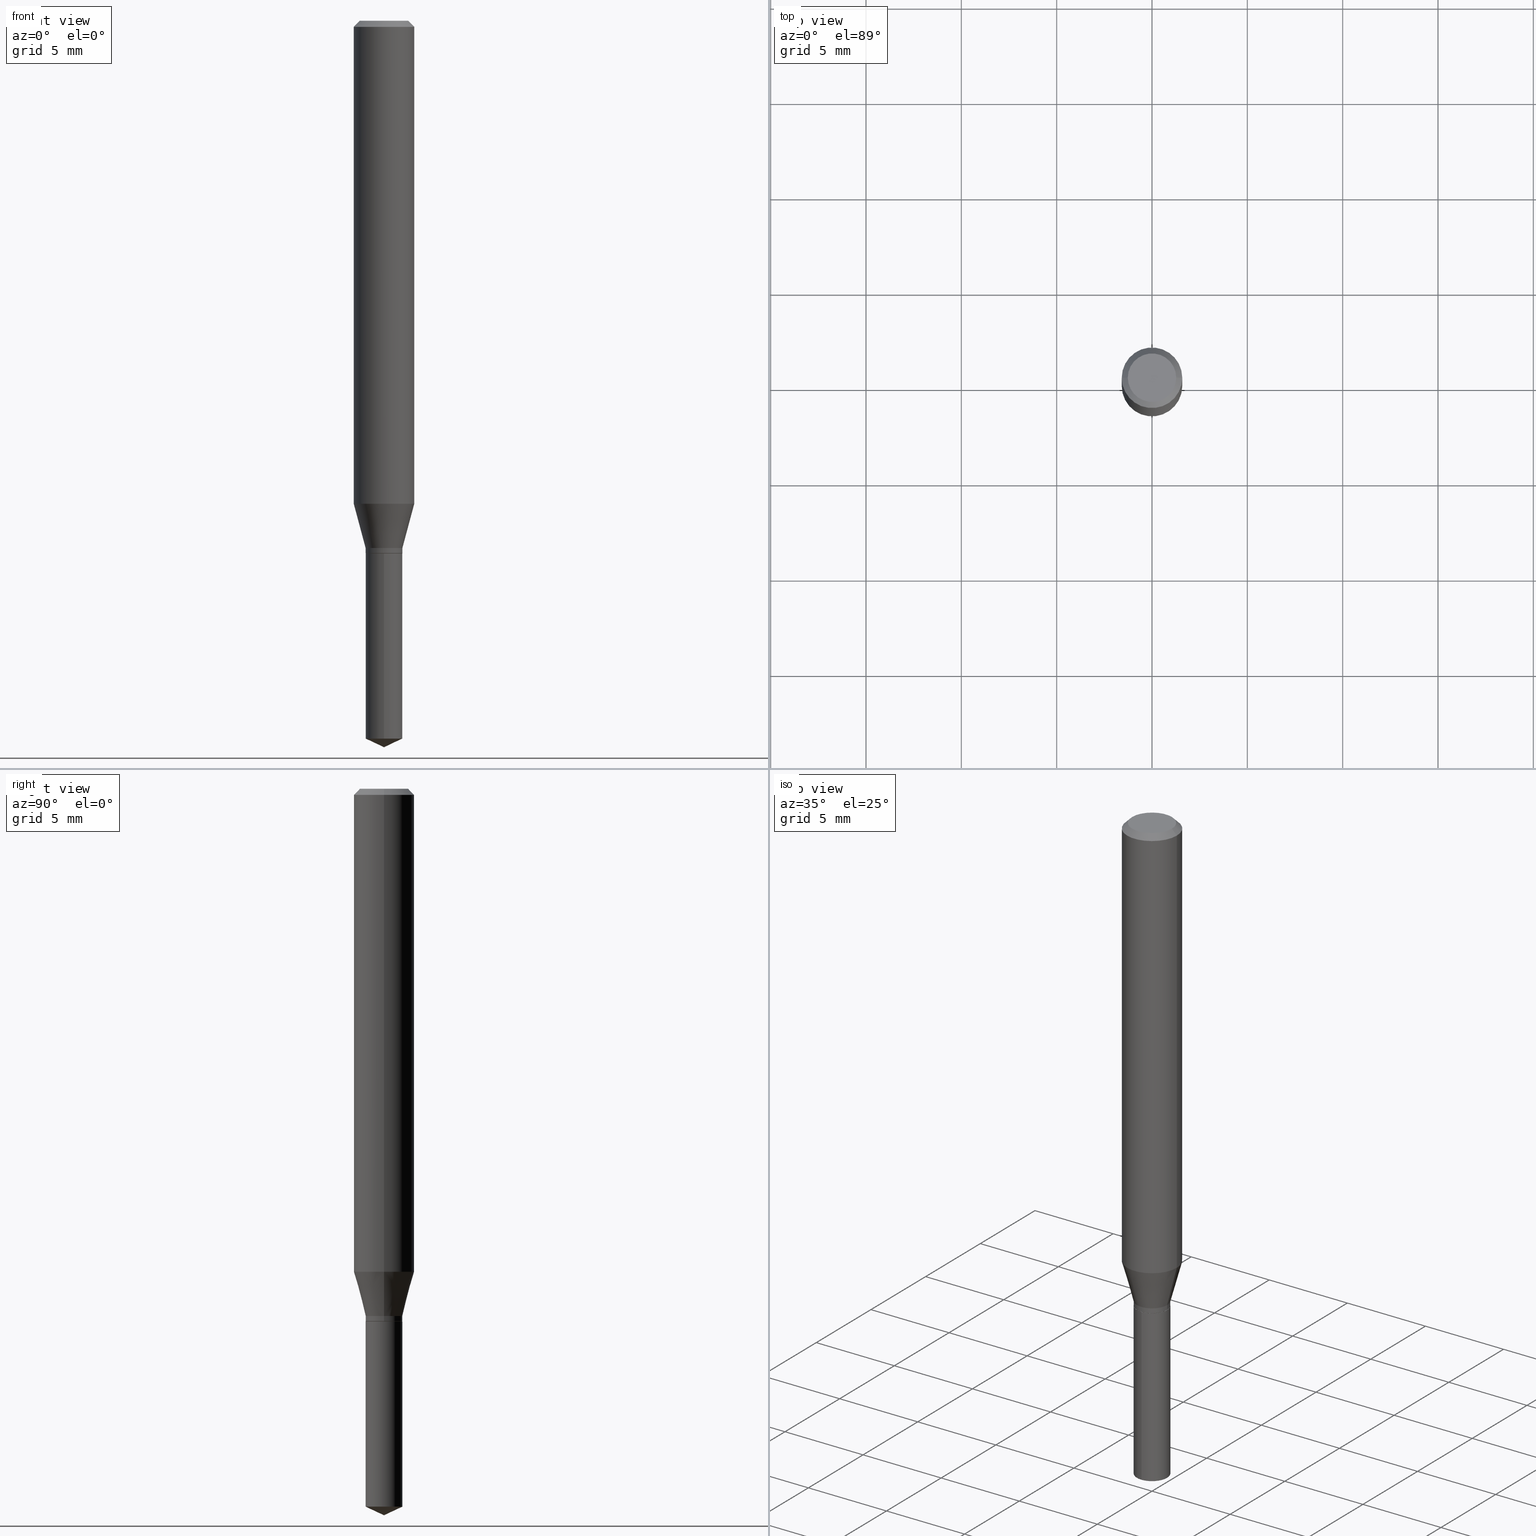
[diagram: canonical four-view strip — front | top / right | iso, engineering-drawing reading convention]
A machine part, canonical four-view strip (front | top / right | iso — engineering-drawing reading convention). The complete STEP part file that produces these views, byte-faithful:
ISO-10303-21;
HEADER;
FILE_DESCRIPTION (( 'STEP AP203' ),
    '1' );
FILE_NAME ('07353.STEP',
    '2024-04-23T20:40:26',
    ( '' ),
    ( '' ),
    'SwSTEP 2.0',
    'SolidWorks 2023',
    '' );
FILE_SCHEMA (( 'CONFIG_CONTROL_DESIGN' ));
ENDSEC;

DATA;
#1 = ORIENTED_EDGE ( 'NONE', *, *, #56, .F. ) ;
#2 = VECTOR ( 'NONE', #272, 39.37007874015748143 ) ;
#3 = ORIENTED_EDGE ( 'NONE', *, *, #122, .F. ) ;
#4 = LINE ( 'NONE', #395, #373 ) ;
#5 = AXIS2_PLACEMENT_3D ( 'NONE', #296, #102, #24 ) ;
#6 = ORIENTED_EDGE ( 'NONE', *, *, #382, .T. ) ;
#7 = DIRECTION ( 'NONE',  ( -2.445399690415121530E-29, 3.491580316559632610E-15, 1.000000000000000000 ) ) ;
#8 = CONICAL_SURFACE ( 'NONE', #259, 0.03800000000000000600, 0.2617993877991500740 ) ;
#9 = ADVANCED_FACE ( 'NONE', ( #107 ), #328, .T. ) ;
#10 = EDGE_LOOP ( 'NONE', ( #368, #85 ) ) ;
#11 = CC_DESIGN_PERSON_AND_ORGANIZATION_ASSIGNMENT ( #100, #29, ( #45 ) ) ;
#12 = DIRECTION ( 'NONE',  ( 1.000000000000000000, -6.982962677686265922E-15, 4.876176775795935793E-29 ) ) ;
#13 =( NAMED_UNIT ( * ) PLANE_ANGLE_UNIT ( ) SI_UNIT ( $, .RADIAN. ) );
#14 = CARTESIAN_POINT ( 'NONE',  ( 3.668099535622682715E-29, -5.237370474839449507E-15, -1.500000000000000222 ) ) ;
#15 = DIRECTION ( 'NONE',  ( 1.000000000000000000, -6.982962677686267499E-15, 0.000000000000000000 ) ) ;
#16 = ORIENTED_EDGE ( 'NONE', *, *, #316, .T. ) ;
#17 = CIRCLE ( 'NONE', #307, 0.04999999999999999584 ) ;
#18 = AXIS2_PLACEMENT_3D ( 'NONE', #229, #379, #192 ) ;
#19 = EDGE_LOOP ( 'NONE', ( #146, #338 ) ) ;
#20 = SECURITY_CLASSIFICATION ( '', '', #71 ) ;
#21 = LINE ( 'NONE', #331, #336 ) ;
#22 = ORIENTED_EDGE ( 'NONE', *, *, #390, .F. ) ;
#23 = ADVANCED_FACE ( 'NONE', ( #248 ), #28, .T. ) ;
#24 = DIRECTION ( 'NONE',  ( 1.000000000000000000, -6.982962677686267499E-15, 4.876176775795936353E-29 ) ) ;
#25 = EDGE_LOOP ( 'NONE', ( #426, #262, #145, #204 ) ) ;
#26 = DATE_AND_TIME ( #370, #325 ) ;
#27 = CARTESIAN_POINT ( 'NONE',  ( 3.893286209682126177E-47, -5.558580879666067980E-33, -1.592040838891559689E-18 ) ) ;
#28 = CYLINDRICAL_SURFACE ( 'NONE', #169, 0.03800000000000000600 ) ;
#29 = PERSON_AND_ORGANIZATION_ROLE ( 'creator' ) ;
#30 = DIRECTION ( 'NONE',  ( -2.445399690415121530E-29, 3.491580316559632610E-15, 1.000000000000000000 ) ) ;
#31 = CIRCLE ( 'NONE', #285, 0.03800000000000000600 ) ;
#32 = APPROVAL_PERSON_ORGANIZATION ( #403, #467, #263 ) ;
#33 = CARTESIAN_POINT ( 'NONE',  ( -0.03749999999999999861, -3.574175946817422690E-15, -1.100000000000000089 ) ) ;
#34 = CARTESIAN_POINT ( 'NONE',  ( -0.06250000000000012490, -3.037492924733674885E-15, -0.9971647552145623816 ) ) ;
#35 = AXIS2_PLACEMENT_3D ( 'NONE', #222, #193, #189 ) ;
#36 = AXIS2_PLACEMENT_3D ( 'NONE', #304, #452, #485 ) ;
#37 = LOCAL_TIME ( 16, 40, 26.00000000000000000, #225 ) ;
#38 = DIRECTION ( 'NONE',  ( 0.2588190451025213501, 1.565188264969621968E-15, 0.9659258262890682012 ) ) ;
#39 = DIRECTION ( 'NONE',  ( 1.000000000000000000, -6.982962677686264344E-15, 0.000000000000000000 ) ) ;
#40 = ORIENTED_EDGE ( 'NONE', *, *, #281, .F. ) ;
#41 = ADVANCED_FACE ( 'NONE', ( #483 ), #154, .T. ) ;
#42 = CIRCLE ( 'NONE', #417, 0.04999999999999999584 ) ;
#43 = ORIENTED_EDGE ( 'NONE', *, *, #231, .T. ) ;
#44 = LOCAL_TIME ( 16, 40, 26.00000000000000000, #252 ) ;
#45 = PRODUCT_DEFINITION ( 'UNKNOWN', '', #378, #275 ) ;
#46 = ORIENTED_EDGE ( 'NONE', *, *, #122, .T. ) ;
#47 = DIRECTION ( 'NONE',  ( -2.445468806185136877E-29, 3.491481338843145188E-15, 1.000000000000000000 ) ) ;
#48 = LINE ( 'NONE', #201, #160 ) ;
#49 = ORIENTED_EDGE ( 'NONE', *, *, #327, .T. ) ;
#50 = DIRECTION ( 'NONE',  ( -2.445468806185136597E-29, 3.491481338843145583E-15, 1.000000000000000000 ) ) ;
#51 = DIRECTION ( 'NONE',  ( 2.445468806185136597E-29, -3.491481338843145583E-15, -1.000000000000000000 ) ) ;
#52 = VECTOR ( 'NONE', #155, 39.37007874015748143 ) ;
#53 = ORIENTED_EDGE ( 'NONE', *, *, #453, .F. ) ;
#54 = DIRECTION ( 'NONE',  ( 1.000000000000000000, -6.982962677686267499E-15, 0.000000000000000000 ) ) ;
#55 = CIRCLE ( 'NONE', #18, 0.03800000000000000600 ) ;
#56 = EDGE_CURVE ( 'NONE', #463, #352, #462, .T. ) ;
#57 = DIRECTION ( 'NONE',  ( -2.445468806185136877E-29, 3.491481338843145188E-15, 1.000000000000000000 ) ) ;
#58 = DIRECTION ( 'NONE',  ( -2.445399690415121810E-29, 3.491580316559632610E-15, 1.000000000000000000 ) ) ;
#59 = CARTESIAN_POINT ( 'NONE',  ( 0.000000000000000000, 0.000000000000000000, 0.000000000000000000 ) ) ;
#60 = VERTEX_POINT ( 'NONE', #486 ) ;
#61 = EDGE_CURVE ( 'NONE', #199, #391, #415, .T. ) ;
#62 = VERTEX_POINT ( 'NONE', #157 ) ;
#63 = COORDINATED_UNIVERSAL_TIME_OFFSET ( 5, 0, .BEHIND. ) ;
#64 = VECTOR ( 'NONE', #47, 39.37007874015748143 ) ;
#65 = APPROVAL ( #219, 'UNSPECIFIED' ) ;
#66 = EDGE_LOOP ( 'NONE', ( #394, #99, #234, #149 ) ) ;
#67 = COORDINATED_UNIVERSAL_TIME_OFFSET ( 5, 0, .BEHIND. ) ;
#68 = FACE_OUTER_BOUND ( 'NONE', #25, .T. ) ;
#69 = EDGE_LOOP ( 'NONE', ( #140, #470, #207, #22 ) ) ;
#70 = CARTESIAN_POINT ( 'NONE',  ( -0.04999999999999999584, 3.709698922520826725E-16, -1.592040838894077649E-18 ) ) ;
#71 = SECURITY_CLASSIFICATION_LEVEL ( 'unclassified' ) ;
#72 = FACE_OUTER_BOUND ( 'NONE', #401, .T. ) ;
#73 = ADVANCED_FACE ( 'NONE', ( #423 ), #226, .T. ) ;
#74 = CARTESIAN_POINT ( 'NONE',  ( -2.653525817520512368E-16, -0.03800000000000384320, -1.099999999999999867 ) ) ;
#75 = CARTESIAN_POINT ( 'NONE',  ( 2.438535303504449813E-29, -3.481582134583737895E-15, -0.9971647552145623816 ) ) ;
#76 = FACE_OUTER_BOUND ( 'NONE', #103, .T. ) ;
#77 = ADVANCED_FACE ( 'NONE', ( #419 ), #86, .T. ) ;
#78 = CARTESIAN_POINT ( 'NONE',  ( 2.690015686803650369E-29, -3.840629472727460101E-15, -1.100000000000000089 ) ) ;
#79 = AXIS2_PLACEMENT_3D ( 'NONE', #344, #306, #115 ) ;
#80 = CARTESIAN_POINT ( 'NONE',  ( -9.260740279983036507E-28, 1.322265303911854087E-13, 37.87007874015748143 ) ) ;
#81 = DIRECTION ( 'NONE',  ( -2.445468806185136877E-29, 3.491481338843145188E-15, 1.000000000000000000 ) ) ;
#82 = CARTESIAN_POINT ( 'NONE',  ( 2.690015686803650369E-29, -3.840629472727460101E-15, -1.100000000000000089 ) ) ;
#83 = ADVANCED_FACE ( 'NONE', ( #76 ), #413, .F. ) ;
#84 = DIRECTION ( 'NONE',  ( -2.445468806185136597E-29, 3.491481338843145583E-15, 1.000000000000000000 ) ) ;
#85 = ORIENTED_EDGE ( 'NONE', *, *, #237, .F. ) ;
#86 = CONICAL_SURFACE ( 'NONE', #79, 0.03749999999999999861, 0.7853981633974141952 ) ;
#87 = AXIS2_PLACEMENT_3D ( 'NONE', #205, #179, #125 ) ;
#88 = CARTESIAN_POINT ( 'NONE',  ( 0.03800000000000000600, -4.104236313810116607E-15, -1.099499999999999922 ) ) ;
#89 = ORIENTED_EDGE ( 'NONE', *, *, #422, .F. ) ;
#90 = CARTESIAN_POINT ( 'NONE',  ( 3.624843836059862325E-29, -5.175391875005663556E-15, -1.482280308990110207 ) ) ;
#91 = EDGE_CURVE ( 'NONE', #165, #218, #118, .T. ) ;
#92 = CARTESIAN_POINT ( 'NONE',  ( 0.03800000000000000600, -4.066179167216727040E-15, -1.088600000000000012 ) ) ;
#93 = CARTESIAN_POINT ( 'NONE',  ( 0.000000000000000000, 0.000000000000000000, 0.000000000000000000 ) ) ;
#94 = VERTEX_POINT ( 'NONE', #273 ) ;
#95 =( LENGTH_UNIT ( ) NAMED_UNIT ( * ) SI_UNIT ( $, .METRE. ) );
#96 = CONICAL_SURFACE ( 'NONE', #35, 0.06250000000000000000, 0.7853981633974452814 ) ;
#97 = ORIENTED_EDGE ( 'NONE', *, *, #255, .T. ) ;
#98 = PRODUCT_DEFINITION_SHAPE ( 'NONE', 'NONE',  #45 ) ;
#99 = ORIENTED_EDGE ( 'NONE', *, *, #164, .T. ) ;
#100 = PERSON_AND_ORGANIZATION ( #134, #117 ) ;
#101 = LINE ( 'NONE', #113, #52 ) ;
#102 = DIRECTION ( 'NONE',  ( -2.445468806185136597E-29, 3.491481338843145583E-15, 1.000000000000000000 ) ) ;
#103 = EDGE_LOOP ( 'NONE', ( #16, #440 ) ) ;
#104 = CALENDAR_DATE ( 2024, 23, 4 ) ;
#105 = CIRCLE ( 'NONE', #446, 0.06250000000000012490 ) ;
#106 = CC_DESIGN_APPROVAL ( #65, ( #20 ) ) ;
#107 = FACE_OUTER_BOUND ( 'NONE', #69, .T. ) ;
#108 = UNCERTAINTY_MEASURE_WITH_UNIT (LENGTH_MEASURE( 1.000000000000000082E-05 ), #324, 'distance_accuracy_value', 'NONE');
#109 = APPROVAL_PERSON_ORGANIZATION ( #418, #65, #150 ) ;
#110 = DIRECTION ( 'NONE',  ( -0.7071067811865232589, 7.493145998870265808E-15, 0.7071067811865715536 ) ) ;
#111 = VERTEX_POINT ( 'NONE', #34 ) ;
#112 = CALENDAR_DATE ( 2024, 23, 4 ) ;
#113 = CARTESIAN_POINT ( 'NONE',  ( 0.06250000000000000000, -4.724246415962602840E-16, -0.01250000000000008049 ) ) ;
#114 = CC_DESIGN_PERSON_AND_ORGANIZATION_ASSIGNMENT ( #449, #443, ( #369 ) ) ;
#115 = DIRECTION ( 'NONE',  ( 1.000000000000000000, -6.982962677686268288E-15, 0.000000000000000000 ) ) ;
#116 = APPLICATION_PROTOCOL_DEFINITION ( 'international standard', 'config_control_design', 1994, #163 ) ;
#117 = ORGANIZATION ( 'UNSPECIFIED', 'UNSPECIFIED', '' ) ;
#118 = LINE ( 'NONE', #74, #335 ) ;
#119 = DIRECTION ( 'NONE',  ( 1.000000000000000000, -6.982962677686266711E-15, 0.000000000000000000 ) ) ;
#120 = CIRCLE ( 'NONE', #363, 0.03800000000000000600 ) ;
#121 = CONICAL_SURFACE ( 'NONE', #166, 84.42940631927412198, 1.134464013796314896 ) ;
#122 = EDGE_CURVE ( 'NONE', #463, #360, #489, .T. ) ;
#123 = ADVANCED_FACE ( 'NONE', ( #233 ), #151, .T. ) ;
#124 = DIRECTION ( 'NONE',  ( -2.445399690415121530E-29, 3.491580316559632610E-15, 1.000000000000000000 ) ) ;
#125 = DIRECTION ( 'NONE',  ( 1.000000000000000000, -6.982962677686265922E-15, 4.876176775795935793E-29 ) ) ;
#126 = LINE ( 'NONE', #389, #223 ) ;
#127 = CIRCLE ( 'NONE', #206, 0.06250000000000012490 ) ;
#128 = VERTEX_POINT ( 'NONE', #284 ) ;
#129 = CARTESIAN_POINT ( 'NONE',  ( 3.893286209682126177E-47, -5.558580879666067980E-33, -1.592040838891559689E-18 ) ) ;
#130 = FACE_OUTER_BOUND ( 'NONE', #318, .T. ) ;
#131 = EDGE_CURVE ( 'NONE', #62, #213, #17, .T. ) ;
#132 = ORIENTED_EDGE ( 'NONE', *, *, #91, .T. ) ;
#133 = LINE ( 'NONE', #200, #347 ) ;
#134 = PERSON ( 'UNSPECIFIED', 'UNSPECIFIED', 'UNSPECIFIED', ('UNSPECIFIED'), ('UNSPECIFIED'), ('UNSPECIFIED') ) ;
#135 = CARTESIAN_POINT ( 'NONE',  ( 0.03800000000000000600, -2.653525817520781567E-16, 1.852947174802455825E-30 ) ) ;
#136 = ORIENTED_EDGE ( 'NONE', *, *, #311, .F. ) ;
#137 = FACE_OUTER_BOUND ( 'NONE', #241, .T. ) ;
#138 = DIRECTION ( 'NONE',  ( 1.000000000000000000, -6.982962677686265922E-15, 4.875957971899673662E-29 ) ) ;
#139 = EDGE_CURVE ( 'NONE', #62, #199, #101, .T. ) ;
#140 = ORIENTED_EDGE ( 'NONE', *, *, #334, .T. ) ;
#141 = DIRECTION ( 'NONE',  ( -6.982962677686265922E-15, -1.000000000000000000, 0.000000000000000000 ) ) ;
#142 = CARTESIAN_POINT ( 'NONE',  ( 0.06250000000000012490, -3.918017301939130748E-15, -0.9971647552145623816 ) ) ;
#143 = DIRECTION ( 'NONE',  ( 0.000000000000000000, 0.000000000000000000, 1.000000000000000000 ) ) ;
#144 = PRODUCT_RELATED_PRODUCT_CATEGORY ( 'detail', '', ( #369 ) ) ;
#145 = ORIENTED_EDGE ( 'NONE', *, *, #255, .F. ) ;
#146 = ORIENTED_EDGE ( 'NONE', *, *, #453, .T. ) ;
#147 = PERSON_AND_ORGANIZATION ( #134, #117 ) ;
#148 = DIRECTION ( 'NONE',  ( -2.445468806185136597E-29, 3.491481338843145583E-15, 1.000000000000000000 ) ) ;
#149 = ORIENTED_EDGE ( 'NONE', *, *, #91, .F. ) ;
#150 = APPROVAL_ROLE ( '' ) ;
#151 = CONICAL_SURFACE ( 'NONE', #481, 84.42940631927412198, 1.134464013796314896 ) ;
#152 = AXIS2_PLACEMENT_3D ( 'NONE', #261, #214, #12 ) ;
#153 = DATE_TIME_ROLE ( 'creation_date' ) ;
#154 = CYLINDRICAL_SURFACE ( 'NONE', #256, 0.03800000000000000600 ) ;
#155 = DIRECTION ( 'NONE',  ( 0.7071067811865453523, -7.319954787623248157E-15, -0.7071067811865496822 ) ) ;
#156 = PERSON_AND_ORGANIZATION ( #134, #117 ) ;
#157 = CARTESIAN_POINT ( 'NONE',  ( 0.04999999999999999584, -4.077247707424184212E-16, -1.592040838888913461E-18 ) ) ;
#158 = LINE ( 'NONE', #456, #2 ) ;
#159 = EDGE_CURVE ( 'NONE', #165, #60, #120, .T. ) ;
#160 = VECTOR ( 'NONE', #58, 39.37007874015748143 ) ;
#161 = CC_DESIGN_DATE_AND_TIME_ASSIGNMENT ( #26, #258, ( #20 ) ) ;
#162 = DIRECTION ( 'NONE',  ( -2.445399690415121530E-29, 3.491580316559632610E-15, 1.000000000000000000 ) ) ;
#163 = APPLICATION_CONTEXT ( 'configuration controlled 3d designs of mechanical parts and assemblies' ) ;
#164 = EDGE_CURVE ( 'NONE', #60, #128, #48, .T. ) ;
#165 = VERTEX_POINT ( 'NONE', #351 ) ;
#166 = AXIS2_PLACEMENT_3D ( 'NONE', #357, #7, #172 ) ;
#167 = ORIENTED_EDGE ( 'NONE', *, *, #355, .F. ) ;
#168 = DIRECTION ( 'NONE',  ( -2.445468806185136597E-29, 3.491481338843145583E-15, 1.000000000000000000 ) ) ;
#169 = AXIS2_PLACEMENT_3D ( 'NONE', #411, #400, #253 ) ;
#170 = AXIS2_PLACEMENT_3D ( 'NONE', #383, #84, #197 ) ;
#171 = VERTEX_POINT ( 'NONE', #14 ) ;
#172 = DIRECTION ( 'NONE',  ( -6.982962677686267499E-15, -1.000000000000000000, 3.520397390770462942E-15 ) ) ;
#173 = MANIFOLD_SOLID_BREP ( 'Body-Move/Copy2[2]', #235 ) ;
#174 = ORIENTED_EDGE ( 'NONE', *, *, #277, .F. ) ;
#175 = LENGTH_MEASURE_WITH_UNIT ( LENGTH_MEASURE( 0.02539999999999999897 ), #95 );
#176 = ADVANCED_FACE ( 'NONE', ( #130 ), #287, .T. ) ;
#177 = ORIENTED_EDGE ( 'NONE', *, *, #342, .T. ) ;
#178 = ORIENTED_EDGE ( 'NONE', *, *, #237, .T. ) ;
#179 = DIRECTION ( 'NONE',  ( -2.445468806185136597E-29, 3.491481338843145583E-15, 1.000000000000000000 ) ) ;
#180 = CIRCLE ( 'NONE', #396, 0.06250000000000000000 ) ;
#181 = CC_DESIGN_SECURITY_CLASSIFICATION ( #20, ( #378 ) ) ;
#182 = ORIENTED_EDGE ( 'NONE', *, *, #220, .F. ) ;
#183 = VERTEX_POINT ( 'NONE', #209 ) ;
#184 = DATE_AND_TIME ( #104, #314 ) ;
#185 = CALENDAR_DATE ( 2024, 23, 4 ) ;
#186 = EDGE_CURVE ( 'NONE', #183, #352, #239, .T. ) ;
#187 = DIRECTION ( 'NONE',  ( -2.445468806185136597E-29, 3.491481338843145583E-15, 1.000000000000000000 ) ) ;
#188 = SHAPE_DEFINITION_REPRESENTATION ( #98, #309 ) ;
#189 = DIRECTION ( 'NONE',  ( -1.000000000000000000, 6.982962677686266711E-15, 0.000000000000000000 ) ) ;
#190 = DIRECTION ( 'NONE',  ( -2.445468806185136597E-29, 3.491481338843145583E-15, 1.000000000000000000 ) ) ;
#191 = EDGE_CURVE ( 'NONE', #352, #463, #290, .T. ) ;
#192 = DIRECTION ( 'NONE',  ( 1.000000000000000000, -6.982962677686267499E-15, 0.000000000000000000 ) ) ;
#193 = DIRECTION ( 'NONE',  ( 2.445468806185136597E-29, -3.491481338843145583E-15, -1.000000000000000000 ) ) ;
#194 = CIRCLE ( 'NONE', #36, 0.03749999999999999861 ) ;
#195 = APPROVAL_PERSON_ORGANIZATION ( #156, #269, #367 ) ;
#196 = CARTESIAN_POINT ( 'NONE',  ( 3.668099535622682155E-29, -5.237370474839448718E-15, -1.500000000000000222 ) ) ;
#197 = DIRECTION ( 'NONE',  ( 1.000000000000000000, -6.982962677686267499E-15, 0.000000000000000000 ) ) ;
#198 = ORIENTED_EDGE ( 'NONE', *, *, #390, .T. ) ;
#199 = VERTEX_POINT ( 'NONE', #265 ) ;
#200 = CARTESIAN_POINT ( 'NONE',  ( -0.06250000000000000000, 3.927916506198521080E-16, -0.01250000000000008049 ) ) ;
#201 = CARTESIAN_POINT ( 'NONE',  ( 2.700062395888649838E-16, 0.03799999999999616185, -1.100000000000000089 ) ) ;
#202 = FACE_OUTER_BOUND ( 'NONE', #10, .T. ) ;
#203 = CARTESIAN_POINT ( 'NONE',  ( 2.662137342413139764E-29, -3.800826585464649031E-15, -1.088600000000000012 ) ) ;
#204 = ORIENTED_EDGE ( 'NONE', *, *, #231, .F. ) ;
#205 = CARTESIAN_POINT ( 'NONE',  ( 0.000000000000000000, 0.000000000000000000, 0.000000000000000000 ) ) ;
#206 = AXIS2_PLACEMENT_3D ( 'NONE', #387, #381, #39 ) ;
#207 = ORIENTED_EDGE ( 'NONE', *, *, #61, .F. ) ;
#208 = CARTESIAN_POINT ( 'NONE',  ( 0.03749999999999999861, -4.102490573140695103E-15, -1.100000000000000089 ) ) ;
#209 = CARTESIAN_POINT ( 'NONE',  ( -0.03800000000000000600, -3.549848919172505504E-15, -1.099499999999999922 ) ) ;
#210 = CARTESIAN_POINT ( 'NONE',  ( 2.662137342413139764E-29, -3.800826585464649031E-15, -1.088600000000000012 ) ) ;
#211 = DIRECTION ( 'NONE',  ( 1.000000000000000000, -6.982962677686265922E-15, 4.876176775795935793E-29 ) ) ;
#212 = ORIENTED_EDGE ( 'NONE', *, *, #435, .T. ) ;
#213 = VERTEX_POINT ( 'NONE', #70 ) ;
#214 = DIRECTION ( 'NONE',  ( -2.438088387897960049E-29, 3.491481338843145188E-15, 1.000000000000000000 ) ) ;
#215 = EDGE_LOOP ( 'NONE', ( #97, #362, #1, #431 ) ) ;
#216 = DATE_AND_TIME ( #375, #37 ) ;
#217 = VECTOR ( 'NONE', #315, 39.37007874015748854 ) ;
#218 = VERTEX_POINT ( 'NONE', #371 ) ;
#219 = APPROVAL_STATUS ( 'not_yet_approved' ) ;
#220 = EDGE_CURVE ( 'NONE', #94, #183, #414, .T. ) ;
#221 = APPROVAL_DATE_TIME ( #184, #269 ) ;
#222 = CARTESIAN_POINT ( 'NONE',  ( 3.056836007731440539E-31, -4.364351673553960451E-17, -0.01250000000000008049 ) ) ;
#223 = VECTOR ( 'NONE', #276, 39.37007874015748854 ) ;
#224 = ADVANCED_FACE ( 'NONE', ( #227 ), #274, .F. ) ;
#225 = COORDINATED_UNIVERSAL_TIME_OFFSET ( 5, 0, .BEHIND. ) ;
#226 = CYLINDRICAL_SURFACE ( 'NONE', #405, 0.03800000000000000600 ) ;
#227 = FACE_OUTER_BOUND ( 'NONE', #19, .T. ) ;
#228 = LINE ( 'NONE', #196, #217 ) ;
#229 = CARTESIAN_POINT ( 'NONE',  ( 2.688792952400557567E-29, -3.838883732058038598E-15, -1.099499999999999922 ) ) ;
#230 = DIRECTION ( 'NONE',  ( -2.445399690415121530E-29, 3.491580316559632610E-15, 1.000000000000000000 ) ) ;
#231 = EDGE_CURVE ( 'NONE', #475, #402, #126, .T. ) ;
#232 = APPLICATION_CONTEXT ( 'configuration controlled 3d designs of mechanical parts and assemblies' ) ;
#233 = FACE_OUTER_BOUND ( 'NONE', #427, .T. ) ;
#234 = ORIENTED_EDGE ( 'NONE', *, *, #316, .F. ) ;
#235 = CLOSED_SHELL ( 'NONE', ( #376, #359, #9, #429, #469, #41, #339, #176, #303, #224, #345, #77 ) ) ;
#236 = CONICAL_SURFACE ( 'NONE', #308, 0.03749999999999999861, 0.7853981633974141952 ) ;
#237 = EDGE_CURVE ( 'NONE', #94, #475, #194, .T. ) ;
#238 = CARTESIAN_POINT ( 'NONE',  ( 3.056836007731440539E-31, -4.364351673553960451E-17, -0.01250000000000008049 ) ) ;
#239 = LINE ( 'NONE', #461, #473 ) ;
#240 = DIRECTION ( 'NONE',  ( 1.000000000000000000, -6.982962677686268288E-15, 0.000000000000000000 ) ) ;
#241 = EDGE_LOOP ( 'NONE', ( #136, #348, #448 ) ) ;
#242 = DIRECTION ( 'NONE',  ( -2.445399690415121530E-29, 3.491580316559632610E-15, 1.000000000000000000 ) ) ;
#243 = FACE_OUTER_BOUND ( 'NONE', #301, .T. ) ;
#244 = LINE ( 'NONE', #398, #482 ) ;
#245 = DIRECTION ( 'NONE',  ( 1.000000000000000000, -6.982962677686267499E-15, 4.876176775795936353E-29 ) ) ;
#246 = AXIS2_PLACEMENT_3D ( 'NONE', #90, #242, #358 ) ;
#247 = CC_DESIGN_DATE_AND_TIME_ASSIGNMENT ( #479, #153, ( #45 ) ) ;
#248 = FACE_OUTER_BOUND ( 'NONE', #356, .T. ) ;
#249 = EDGE_LOOP ( 'NONE', ( #182, #178, #43, #450 ) ) ;
#250 = LINE ( 'NONE', #135, #64 ) ;
#251 = ORIENTED_EDGE ( 'NONE', *, *, #131, .F. ) ;
#252 = COORDINATED_UNIVERSAL_TIME_OFFSET ( 5, 0, .BEHIND. ) ;
#253 = DIRECTION ( 'NONE',  ( -6.982962677686265133E-15, -1.000000000000000000, 3.594536833768767206E-15 ) ) ;
#254 = AXIS2_PLACEMENT_3D ( 'NONE', #340, #305, #270 ) ;
#255 = EDGE_CURVE ( 'NONE', #402, #183, #55, .T. ) ;
#256 = AXIS2_PLACEMENT_3D ( 'NONE', #59, #148, #211 ) ;
#257 = ORIENTED_EDGE ( 'NONE', *, *, #186, .F. ) ;
#258 = DATE_TIME_ROLE ( 'classification_date' ) ;
#259 = AXIS2_PLACEMENT_3D ( 'NONE', #210, #168, #54 ) ;
#260 = DIRECTION ( 'NONE',  ( 2.438088387897960049E-29, -3.491481338843145188E-15, -1.000000000000000000 ) ) ;
#261 = CARTESIAN_POINT ( 'NONE',  ( 2.690015686803650369E-29, -3.840629472727460101E-15, -1.100000000000000089 ) ) ;
#262 = ORIENTED_EDGE ( 'NONE', *, *, #220, .T. ) ;
#263 = APPROVAL_ROLE ( '' ) ;
#264 = ORIENTED_EDGE ( 'NONE', *, *, #422, .T. ) ;
#265 = CARTESIAN_POINT ( 'NONE',  ( 0.06250000000000000000, -4.800786840909312308E-16, -0.01250000000000008049 ) ) ;
#266 = APPROVAL_DATE_TIME ( #216, #467 ) ;
#267 = AXIS2_PLACEMENT_3D ( 'NONE', #268, #30, #410 ) ;
#268 = CARTESIAN_POINT ( 'NONE',  ( 2.690015686803650369E-29, -3.840629472727460101E-15, -1.100000000000000089 ) ) ;
#269 = APPROVAL ( #337, 'UNSPECIFIED' ) ;
#270 = DIRECTION ( 'NONE',  ( 1.000000000000000000, -6.982962677686266711E-15, 0.000000000000000000 ) ) ;
#271 = DIRECTION ( 'NONE',  ( -2.445468806185136597E-29, 3.491481338843145583E-15, 1.000000000000000000 ) ) ;
#272 = DIRECTION ( 'NONE',  ( 6.439704144417026409E-15, 0.9063077870366517130, 0.4226182617406956665 ) ) ;
#273 = CARTESIAN_POINT ( 'NONE',  ( -0.03749999999999999861, -3.571526719643311488E-15, -1.100000000000000089 ) ) ;
#274 = PLANE ( 'NONE',  #341 ) ;
#275 = DESIGN_CONTEXT ( 'detailed design', #163, 'design' ) ;
#276 = DIRECTION ( 'NONE',  ( 0.7071067811865232589, -2.468850131082003836E-15, 0.7071067811865715536 ) ) ;
#277 = EDGE_CURVE ( 'NONE', #128, #218, #377, .T. ) ;
#278 = DIRECTION ( 'NONE',  ( -6.982962677686265133E-15, -1.000000000000000000, 3.594536833768767206E-15 ) ) ;
#279 = CIRCLE ( 'NONE', #246, 0.03800000000000000600 ) ;
#280 = ORIENTED_EDGE ( 'NONE', *, *, #435, .F. ) ;
#281 = EDGE_CURVE ( 'NONE', #171, #60, #158, .T. ) ;
#282 = ORIENTED_EDGE ( 'NONE', *, *, #327, .F. ) ;
#283 = APPLICATION_PROTOCOL_DEFINITION ( 'international standard', 'config_control_design', 1994, #232 ) ;
#284 = CARTESIAN_POINT ( 'NONE',  ( 2.700062395888743515E-16, 0.03799999999999616185, -1.100000000000000089 ) ) ;
#285 = AXIS2_PLACEMENT_3D ( 'NONE', #82, #124, #278 ) ;
#286 = DIRECTION ( 'NONE',  ( -2.445468806185136597E-29, 3.491481338843145583E-15, 1.000000000000000000 ) ) ;
#287 = CYLINDRICAL_SURFACE ( 'NONE', #385, 0.06250000000000005551 ) ;
#288 = DIRECTION ( 'NONE',  ( 1.000000000000000000, -6.982962677686268288E-15, 0.000000000000000000 ) ) ;
#289 = CARTESIAN_POINT ( 'NONE',  ( 2.688792952400557567E-29, -3.838883732058038598E-15, -1.099499999999999922 ) ) ;
#290 = CIRCLE ( 'NONE', #321, 0.03800000000000000600 ) ;
#291 = CARTESIAN_POINT ( 'NONE',  ( -0.06250000000000000000, -1.318523615809574929E-15, -0.01250000000000008049 ) ) ;
#292 = CARTESIAN_POINT ( 'NONE',  ( 3.624843836059862325E-29, -5.175391875005663556E-15, -1.482280308990110207 ) ) ;
#293 = PLANE ( 'NONE',  #152 ) ;
#294 = EDGE_LOOP ( 'NONE', ( #89, #404, #46, #326 ) ) ;
#295 = DIRECTION ( 'NONE',  ( 1.000000000000000000, 0.000000000000000000, 0.000000000000000000 ) ) ;
#296 = CARTESIAN_POINT ( 'NONE',  ( 0.000000000000000000, 0.000000000000000000, 0.000000000000000000 ) ) ;
#297 = ORIENTED_EDGE ( 'NONE', *, *, #164, .F. ) ;
#298 = PERSON_AND_ORGANIZATION_ROLE ( 'classification_officer' ) ;
#299 = CARTESIAN_POINT ( 'NONE',  ( 2.662137342413139764E-29, -3.800826585464649031E-15, -1.088600000000000012 ) ) ;
#300 = AXIS2_PLACEMENT_3D ( 'NONE', #289, #50, #353 ) ;
#301 = EDGE_LOOP ( 'NONE', ( #251, #434, #329, #406 ) ) ;
#302 = DATE_AND_TIME ( #185, #386 ) ;
#303 = ADVANCED_FACE ( 'NONE', ( #72 ), #96, .T. ) ;
#304 = CARTESIAN_POINT ( 'NONE',  ( 2.690015686803650369E-29, -3.840629472727460101E-15, -1.100000000000000089 ) ) ;
#305 = DIRECTION ( 'NONE',  ( -2.445468806185136597E-29, 3.491481338843145583E-15, 1.000000000000000000 ) ) ;
#306 = DIRECTION ( 'NONE',  ( -2.445468806185136597E-29, 3.491481338843145583E-15, 1.000000000000000000 ) ) ;
#307 = AXIS2_PLACEMENT_3D ( 'NONE', #27, #271, #138 ) ;
#308 = AXIS2_PLACEMENT_3D ( 'NONE', #388, #432, #240 ) ;
#309 = ADVANCED_BREP_SHAPE_REPRESENTATION ( '07353', ( #332, #173, #428 ), #364 ) ;
#310 = DIRECTION ( 'NONE',  ( 2.445399690415121250E-29, -3.491580316559632610E-15, -1.000000000000000000 ) ) ;
#311 = EDGE_CURVE ( 'NONE', #171, #165, #228, .T. ) ;
#312 = ORIENTED_EDGE ( 'NONE', *, *, #311, .T. ) ;
#313 = CIRCLE ( 'NONE', #465, 0.03749999999999999861 ) ;
#314 = LOCAL_TIME ( 16, 40, 26.00000000000000000, #67 ) ;
#315 = DIRECTION ( 'NONE',  ( -6.328713451373370167E-15, -0.9063077870366487154, 0.4226182617407018838 ) ) ;
#316 = EDGE_CURVE ( 'NONE', #218, #128, #31, .T. ) ;
#317 = DIRECTION ( 'NONE',  ( -6.982962677686267499E-15, -1.000000000000000000, 3.520397390770462942E-15 ) ) ;
#318 = EDGE_LOOP ( 'NONE', ( #167, #177, #198, #282 ) ) ;
#319 = DIRECTION ( 'NONE',  ( -2.445468806185136597E-29, 3.491481338843145583E-15, 1.000000000000000000 ) ) ;
#320 = AXIS2_PLACEMENT_3D ( 'NONE', #454, #310, #457 ) ;
#321 = AXIS2_PLACEMENT_3D ( 'NONE', #203, #190, #408 ) ;
#322 = VECTOR ( 'NONE', #110, 39.37007874015748854 ) ;
#323 = FACE_OUTER_BOUND ( 'NONE', #215, .T. ) ;
#324 =( CONVERSION_BASED_UNIT ( 'INCH', #175 ) LENGTH_UNIT ( ) NAMED_UNIT ( #416 ) );
#325 = LOCAL_TIME ( 16, 40, 26.00000000000000000, #63 ) ;
#326 = ORIENTED_EDGE ( 'NONE', *, *, #342, .F. ) ;
#327 = EDGE_CURVE ( 'NONE', #391, #199, #180, .T. ) ;
#328 = CYLINDRICAL_SURFACE ( 'NONE', #5, 0.06250000000000005551 ) ;
#329 = ORIENTED_EDGE ( 'NONE', *, *, #61, .T. ) ;
#330 = MECHANICAL_CONTEXT ( 'NONE', #232, 'mechanical' ) ;
#331 = CARTESIAN_POINT ( 'NONE',  ( -0.06250000000000005551, 4.440892098500630106E-16, -3.074334431409318916E-30 ) ) ;
#332 = MANIFOLD_SOLID_BREP ( 'Body-Move/Copy2[1]', #436 ) ;
#333 = PERSON_AND_ORGANIZATION ( #134, #117 ) ;
#334 = EDGE_CURVE ( 'NONE', #360, #111, #127, .T. ) ;
#335 = VECTOR ( 'NONE', #374, 39.37007874015748143 ) ;
#336 = VECTOR ( 'NONE', #81, 39.37007874015748143 ) ;
#337 = APPROVAL_STATUS ( 'not_yet_approved' ) ;
#338 = ORIENTED_EDGE ( 'NONE', *, *, #131, .T. ) ;
#339 = ADVANCED_FACE ( 'NONE', ( #343 ), #459, .T. ) ;
#340 = CARTESIAN_POINT ( 'NONE',  ( 3.056836007731440539E-31, -4.364351673553960451E-17, -0.01250000000000008049 ) ) ;
#341 = AXIS2_PLACEMENT_3D ( 'NONE', #420, #260, #425 ) ;
#342 = EDGE_CURVE ( 'NONE', #111, #360, #105, .T. ) ;
#343 = FACE_OUTER_BOUND ( 'NONE', #294, .T. ) ;
#344 = CARTESIAN_POINT ( 'NONE',  ( 2.690015686803650369E-29, -3.840629472727460101E-15, -1.100000000000000089 ) ) ;
#345 = ADVANCED_FACE ( 'NONE', ( #202 ), #293, .F. ) ;
#346 = DIRECTION ( 'NONE',  ( -2.445468806185136597E-29, 3.491481338843145583E-15, 1.000000000000000000 ) ) ;
#347 = VECTOR ( 'NONE', #350, 39.37007874015748143 ) ;
#348 = ORIENTED_EDGE ( 'NONE', *, *, #281, .T. ) ;
#349 = ORIENTED_EDGE ( 'NONE', *, *, #334, .F. ) ;
#350 = DIRECTION ( 'NONE',  ( -0.7071067811865453523, 2.468850131082234184E-15, -0.7071067811865496822 ) ) ;
#351 = CARTESIAN_POINT ( 'NONE',  ( -2.653525817520419677E-16, -0.03800000000000519629, -1.482280308990110207 ) ) ;
#352 = VERTEX_POINT ( 'NONE', #441 ) ;
#353 = DIRECTION ( 'NONE',  ( 1.000000000000000000, -6.982962677686267499E-15, 0.000000000000000000 ) ) ;
#354 = VECTOR ( 'NONE', #38, 39.37007874015747433 ) ;
#355 = EDGE_CURVE ( 'NONE', #111, #391, #21, .T. ) ;
#356 = EDGE_LOOP ( 'NONE', ( #297, #212, #132, #174 ) ) ;
#357 = CARTESIAN_POINT ( 'NONE',  ( -9.260740279983036507E-28, 1.322265303911854087E-13, 37.87007874015748143 ) ) ;
#358 = DIRECTION ( 'NONE',  ( -6.982962677686265922E-15, -1.000000000000000000, 0.000000000000000000 ) ) ;
#359 = ADVANCED_FACE ( 'NONE', ( #243 ), #421, .T. ) ;
#360 = VERTEX_POINT ( 'NONE', #142 ) ;
#361 = CARTESIAN_POINT ( 'NONE',  ( 2.690015686803650369E-29, -3.840629472727460101E-15, -1.100000000000000089 ) ) ;
#362 = ORIENTED_EDGE ( 'NONE', *, *, #186, .T. ) ;
#363 = AXIS2_PLACEMENT_3D ( 'NONE', #292, #412, #141 ) ;
#364 =( GEOMETRIC_REPRESENTATION_CONTEXT ( 3 ) GLOBAL_UNCERTAINTY_ASSIGNED_CONTEXT ( ( #108 ) ) GLOBAL_UNIT_ASSIGNED_CONTEXT ( ( #324, #13, #472 ) ) REPRESENTATION_CONTEXT ( 'NONE', 'WORKASPACE' ) );
#365 = CC_DESIGN_PERSON_AND_ORGANIZATION_ASSIGNMENT ( #333, #298, ( #20 ) ) ;
#366 = ORIENTED_EDGE ( 'NONE', *, *, #191, .F. ) ;
#367 = APPROVAL_ROLE ( '' ) ;
#368 = ORIENTED_EDGE ( 'NONE', *, *, #447, .F. ) ;
#369 = PRODUCT ( '07353', '07353', '', ( #330 ) ) ;
#370 = CALENDAR_DATE ( 2024, 23, 4 ) ;
#371 = CARTESIAN_POINT ( 'NONE',  ( -2.653525817520512368E-16, -0.03800000000000384320, -1.099999999999999867 ) ) ;
#372 = APPROVAL_DATE_TIME ( #302, #65 ) ;
#373 = VECTOR ( 'NONE', #464, 39.37007874015747433 ) ;
#374 = DIRECTION ( 'NONE',  ( -2.445399690415121810E-29, 3.491580316559632610E-15, 1.000000000000000000 ) ) ;
#375 = CALENDAR_DATE ( 2024, 23, 4 ) ;
#376 = ADVANCED_FACE ( 'NONE', ( #68 ), #236, .T. ) ;
#377 = CIRCLE ( 'NONE', #267, 0.03800000000000000600 ) ;
#378 = PRODUCT_DEFINITION_FORMATION_WITH_SPECIFIED_SOURCE ( 'ANY', '', #369, .NOT_KNOWN. ) ;
#379 = DIRECTION ( 'NONE',  ( -2.445468806185136597E-29, 3.491481338843145583E-15, 1.000000000000000000 ) ) ;
#380 = CARTESIAN_POINT ( 'NONE',  ( 0.03800000000000000600, -4.066179167216727040E-15, -1.088600000000000012 ) ) ;
#381 = DIRECTION ( 'NONE',  ( -2.445468806185136597E-29, 3.491481338843145583E-15, 1.000000000000000000 ) ) ;
#382 = EDGE_CURVE ( 'NONE', #402, #463, #250, .T. ) ;
#383 = CARTESIAN_POINT ( 'NONE',  ( 2.662137342413139764E-29, -3.800826585464649031E-15, -1.088600000000000012 ) ) ;
#384 = EDGE_LOOP ( 'NONE', ( #257, #444, #6, #366 ) ) ;
#385 = AXIS2_PLACEMENT_3D ( 'NONE', #93, #468, #245 ) ;
#386 = LOCAL_TIME ( 16, 40, 26.00000000000000000, #484 ) ;
#387 = CARTESIAN_POINT ( 'NONE',  ( 2.438535303504449813E-29, -3.481582134583737895E-15, -0.9971647552145623816 ) ) ;
#388 = CARTESIAN_POINT ( 'NONE',  ( 2.690015686803650369E-29, -3.840629472727460101E-15, -1.100000000000000089 ) ) ;
#389 = CARTESIAN_POINT ( 'NONE',  ( 0.03749999999999999861, -4.102490573140695103E-15, -1.100000000000000089 ) ) ;
#390 = EDGE_CURVE ( 'NONE', #360, #199, #244, .T. ) ;
#391 = VERTEX_POINT ( 'NONE', #291 ) ;
#392 = DIRECTION ( 'NONE',  ( 1.000000000000000000, -6.982962677686265922E-15, 4.875957971899673662E-29 ) ) ;
#393 = CARTESIAN_POINT ( 'NONE',  ( 3.056836007731440539E-31, -4.364351673553960451E-17, -0.01250000000000008049 ) ) ;
#394 = ORIENTED_EDGE ( 'NONE', *, *, #159, .T. ) ;
#395 = CARTESIAN_POINT ( 'NONE',  ( -0.03800000000000000600, -3.530820345875810721E-15, -1.088600000000000012 ) ) ;
#396 = AXIS2_PLACEMENT_3D ( 'NONE', #238, #346, #119 ) ;
#397 = ORIENTED_EDGE ( 'NONE', *, *, #399, .T. ) ;
#398 = CARTESIAN_POINT ( 'NONE',  ( 0.06250000000000005551, -4.364351673553921131E-16, 3.047610484872463023E-30 ) ) ;
#399 = EDGE_CURVE ( 'NONE', #213, #391, #133, .T. ) ;
#400 = DIRECTION ( 'NONE',  ( -2.445399690415121530E-29, 3.491580316559632610E-15, 1.000000000000000000 ) ) ;
#401 = EDGE_LOOP ( 'NONE', ( #478, #53, #397, #49 ) ) ;
#402 = VERTEX_POINT ( 'NONE', #88 ) ;
#403 = PERSON_AND_ORGANIZATION ( #134, #117 ) ;
#404 = ORIENTED_EDGE ( 'NONE', *, *, #191, .T. ) ;
#405 = AXIS2_PLACEMENT_3D ( 'NONE', #78, #230, #487 ) ;
#406 = ORIENTED_EDGE ( 'NONE', *, *, #399, .F. ) ;
#407 = PERSON_AND_ORGANIZATION_ROLE ( 'creator' ) ;
#408 = DIRECTION ( 'NONE',  ( 1.000000000000000000, -6.982962677686267499E-15, 0.000000000000000000 ) ) ;
#409 = APPROVAL_STATUS ( 'not_yet_approved' ) ;
#410 = DIRECTION ( 'NONE',  ( -6.982962677686265133E-15, -1.000000000000000000, 3.594536833768767206E-15 ) ) ;
#411 = CARTESIAN_POINT ( 'NONE',  ( 2.690015686803650369E-29, -3.840629472727460101E-15, -1.100000000000000089 ) ) ;
#412 = DIRECTION ( 'NONE',  ( -2.445399690415121530E-29, 3.491580316559632610E-15, 1.000000000000000000 ) ) ;
#413 = PLANE ( 'NONE',  #320 ) ;
#414 = LINE ( 'NONE', #33, #322 ) ;
#415 = CIRCLE ( 'NONE', #254, 0.06250000000000000000 ) ;
#416 = DIMENSIONAL_EXPONENTS ( 1.000000000000000000, 0.000000000000000000, 0.000000000000000000, 0.000000000000000000, 0.000000000000000000, 0.000000000000000000, 0.000000000000000000 ) ;
#417 = AXIS2_PLACEMENT_3D ( 'NONE', #129, #286, #392 ) ;
#418 = PERSON_AND_ORGANIZATION ( #134, #117 ) ;
#419 = FACE_OUTER_BOUND ( 'NONE', #249, .T. ) ;
#420 = CARTESIAN_POINT ( 'NONE',  ( 1.946643104841063088E-47, -2.779290439833033990E-33, -7.960204194457798443E-19 ) ) ;
#421 = CONICAL_SURFACE ( 'NONE', #455, 0.06250000000000000000, 0.7853981633974452814 ) ;
#422 = EDGE_CURVE ( 'NONE', #352, #111, #4, .T. ) ;
#423 = FACE_OUTER_BOUND ( 'NONE', #66, .T. ) ;
#424 = CC_DESIGN_PERSON_AND_ORGANIZATION_ASSIGNMENT ( #480, #407, ( #378 ) ) ;
#425 = DIRECTION ( 'NONE',  ( -1.000000000000000000, 6.982962677686265922E-15, -4.876176775795935793E-29 ) ) ;
#426 = ORIENTED_EDGE ( 'NONE', *, *, #447, .T. ) ;
#427 = EDGE_LOOP ( 'NONE', ( #40, #312, #280 ) ) ;
#428 = AXIS2_PLACEMENT_3D ( 'NONE', #476, #143, #295 ) ;
#429 = ADVANCED_FACE ( 'NONE', ( #438 ), #8, .T. ) ;
#430 = DIRECTION ( 'NONE',  ( -2.445468806185136877E-29, 3.491481338843145188E-15, 1.000000000000000000 ) ) ;
#431 = ORIENTED_EDGE ( 'NONE', *, *, #382, .F. ) ;
#432 = DIRECTION ( 'NONE',  ( -2.445468806185136597E-29, 3.491481338843145583E-15, 1.000000000000000000 ) ) ;
#433 = DIRECTION ( 'NONE',  ( -2.445468806185136597E-29, 3.491481338843145583E-15, 1.000000000000000000 ) ) ;
#434 = ORIENTED_EDGE ( 'NONE', *, *, #139, .T. ) ;
#435 = EDGE_CURVE ( 'NONE', #60, #165, #279, .T. ) ;
#436 = CLOSED_SHELL ( 'NONE', ( #73, #490, #123, #23, #83 ) ) ;
#437 = CC_DESIGN_APPROVAL ( #467, ( #378 ) ) ;
#438 = FACE_OUTER_BOUND ( 'NONE', #442, .T. ) ;
#439 = CC_DESIGN_PERSON_AND_ORGANIZATION_ASSIGNMENT ( #147, #451, ( #378 ) ) ;
#440 = ORIENTED_EDGE ( 'NONE', *, *, #277, .T. ) ;
#441 = CARTESIAN_POINT ( 'NONE',  ( -0.03800000000000000600, -3.549848919172505504E-15, -1.088600000000000012 ) ) ;
#442 = EDGE_LOOP ( 'NONE', ( #477, #264, #349, #3 ) ) ;
#443 = PERSON_AND_ORGANIZATION_ROLE ( 'design_owner' ) ;
#444 = ORIENTED_EDGE ( 'NONE', *, *, #458, .T. ) ;
#445 = AXIS2_PLACEMENT_3D ( 'NONE', #299, #187, #15 ) ;
#446 = AXIS2_PLACEMENT_3D ( 'NONE', #75, #433, #460 ) ;
#447 = EDGE_CURVE ( 'NONE', #475, #94, #313, .T. ) ;
#448 = ORIENTED_EDGE ( 'NONE', *, *, #159, .F. ) ;
#449 = PERSON_AND_ORGANIZATION ( #134, #117 ) ;
#450 = ORIENTED_EDGE ( 'NONE', *, *, #458, .F. ) ;
#451 = PERSON_AND_ORGANIZATION_ROLE ( 'design_supplier' ) ;
#452 = DIRECTION ( 'NONE',  ( -2.445468806185136597E-29, 3.491481338843145583E-15, 1.000000000000000000 ) ) ;
#453 = EDGE_CURVE ( 'NONE', #213, #62, #42, .T. ) ;
#454 = CARTESIAN_POINT ( 'NONE',  ( 2.690015686803650369E-29, -3.840629472727460101E-15, -1.100000000000000089 ) ) ;
#455 = AXIS2_PLACEMENT_3D ( 'NONE', #393, #51, #474 ) ;
#456 = CARTESIAN_POINT ( 'NONE',  ( 3.668252923656895710E-29, -5.237152723863177100E-15, -1.500000000000000222 ) ) ;
#457 = DIRECTION ( 'NONE',  ( 6.982962677686265922E-15, 1.000000000000000000, -3.491580316559632610E-15 ) ) ;
#458 = EDGE_CURVE ( 'NONE', #183, #402, #488, .T. ) ;
#459 = CONICAL_SURFACE ( 'NONE', #170, 0.03800000000000000600, 0.2617993877991500740 ) ;
#460 = DIRECTION ( 'NONE',  ( 1.000000000000000000, -6.982962677686264344E-15, 0.000000000000000000 ) ) ;
#461 = CARTESIAN_POINT ( 'NONE',  ( -0.03800000000000000600, 2.700062395888381132E-16, -1.869195334296864348E-30 ) ) ;
#462 = CIRCLE ( 'NONE', #445, 0.03800000000000000600 ) ;
#463 = VERTEX_POINT ( 'NONE', #92 ) ;
#464 = DIRECTION ( 'NONE',  ( -0.2588190451025213501, 5.211531920934551042E-15, 0.9659258262890682012 ) ) ;
#465 = AXIS2_PLACEMENT_3D ( 'NONE', #361, #319, #288 ) ;
#466 = CC_DESIGN_APPROVAL ( #269, ( #45 ) ) ;
#467 = APPROVAL ( #409, 'UNSPECIFIED' ) ;
#468 = DIRECTION ( 'NONE',  ( -2.445468806185136597E-29, 3.491481338843145583E-15, 1.000000000000000000 ) ) ;
#469 = ADVANCED_FACE ( 'NONE', ( #323 ), #471, .T. ) ;
#470 = ORIENTED_EDGE ( 'NONE', *, *, #355, .T. ) ;
#471 = CYLINDRICAL_SURFACE ( 'NONE', #87, 0.03800000000000000600 ) ;
#472 =( NAMED_UNIT ( * ) SI_UNIT ( $, .STERADIAN. ) SOLID_ANGLE_UNIT ( ) );
#473 = VECTOR ( 'NONE', #430, 39.37007874015748143 ) ;
#474 = DIRECTION ( 'NONE',  ( -1.000000000000000000, 6.982962677686266711E-15, 0.000000000000000000 ) ) ;
#475 = VERTEX_POINT ( 'NONE', #208 ) ;
#476 = CARTESIAN_POINT ( 'NONE',  ( 0.000000000000000000, 0.000000000000000000, 0.000000000000000000 ) ) ;
#477 = ORIENTED_EDGE ( 'NONE', *, *, #56, .T. ) ;
#478 = ORIENTED_EDGE ( 'NONE', *, *, #139, .F. ) ;
#479 = DATE_AND_TIME ( #112, #44 ) ;
#480 = PERSON_AND_ORGANIZATION ( #134, #117 ) ;
#481 = AXIS2_PLACEMENT_3D ( 'NONE', #80, #162, #317 ) ;
#482 = VECTOR ( 'NONE', #57, 39.37007874015748143 ) ;
#483 = FACE_OUTER_BOUND ( 'NONE', #384, .T. ) ;
#484 = COORDINATED_UNIVERSAL_TIME_OFFSET ( 5, 0, .BEHIND. ) ;
#485 = DIRECTION ( 'NONE',  ( 1.000000000000000000, -6.982962677686268288E-15, 0.000000000000000000 ) ) ;
#486 = CARTESIAN_POINT ( 'NONE',  ( 2.700062395888744008E-16, 0.03799999999999484346, -1.482280308990110207 ) ) ;
#487 = DIRECTION ( 'NONE',  ( -6.982962677686265133E-15, -1.000000000000000000, 3.594536833768767206E-15 ) ) ;
#488 = CIRCLE ( 'NONE', #300, 0.03800000000000000600 ) ;
#489 = LINE ( 'NONE', #380, #354 ) ;
#490 = ADVANCED_FACE ( 'NONE', ( #137 ), #121, .T. ) ;
ENDSEC;
END-ISO-10303-21;
